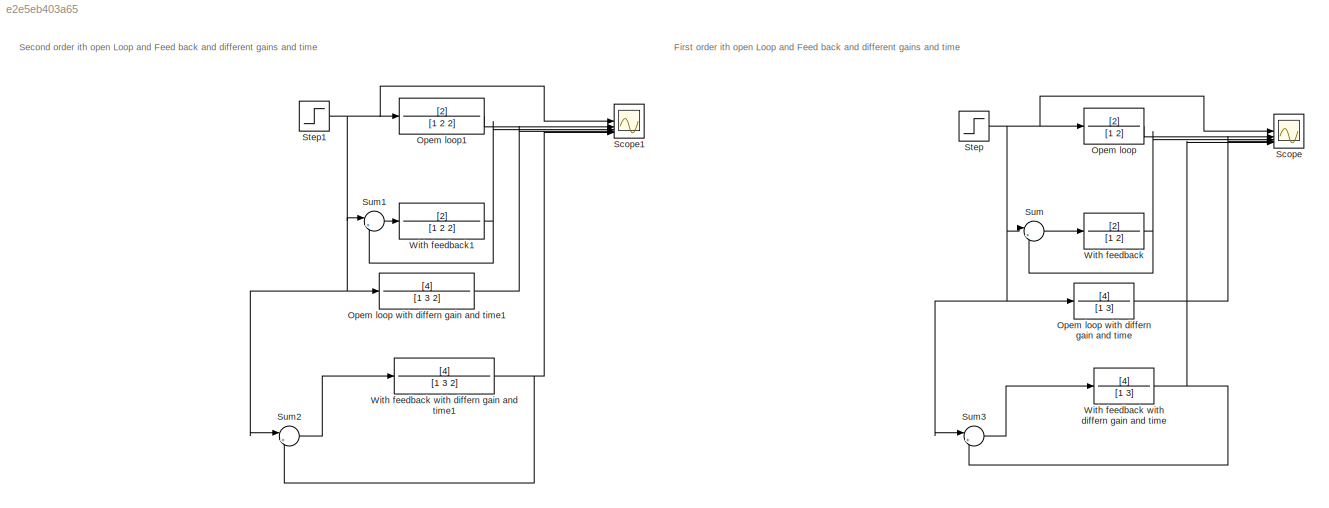
MODEL slx_e2e5eb403a65
KIND model
CONFIG AbsTol = auto
CONFIG EnableMultiTasking = off
CONFIG FixedStep = auto
CONFIG MaxStep = auto
CONFIG MinStep = auto
CONFIG RelTol = 1e-3
CONFIG SampleTimeConstraint = Unconstrained
CONFIG SolverName = VariableStepAuto
CONFIG StartTime = 0.0
CONFIG StopTime = 10.0
BLOCK [TransferFcn] Opem loop
  Denominator = [1 2]
  Numerator = [2]
BLOCK [TransferFcn] Opem loop with differn gain and time
  Denominator = [1 3]
  Numerator = [4]
BLOCK [TransferFcn] Opem loop with differn gain and time1
  Denominator = [1 3 2]
  Numerator = [4]
BLOCK [TransferFcn] Opem loop1
  Denominator = [1 2 2]
  Numerator = [2]
BLOCK [Scope] Scope
  Floating = off
  NumInputPorts = 5
  ScopeSpecificationString = Simulink.scopes.TimeScopeBlockCfg('CurrentConfiguration', extmgr.ConfigurationSet(extmgr.Configuration('Core','General UI',true),extmgr.Configuration('Core','Source UI',true),extmgr.Configuration('Sources','WiredSimulink',true),extmgr.Configuration('Visuals','Time Domain',true,'SerializedDisplays',{struct('MinYLimReal','-0.16667','MaxYLimReal','1.5','YLabelReal','','MinYLimMag','0.00000','MaxYLimM...<+4914ch>
BLOCK [Scope] Scope1
  Floating = off
  NumInputPorts = 5
  ScopeSpecificationString = Simulink.scopes.TimeScopeBlockCfg('CurrentConfiguration', extmgr.ConfigurationSet(extmgr.Configuration('Core','General UI',true),extmgr.Configuration('Core','Source UI',true),extmgr.Configuration('Sources','WiredSimulink',true,'DataLoggingVariableName','ScopeData1'),extmgr.Configuration('Visuals','Time Domain',true,'SerializedDisplays',{struct('MinYLimReal','-0.125','MaxYLimReal','1.125','YLabelRe...<+4926ch>
BLOCK [Step] Step
  SampleTime = 0
BLOCK [Step] Step1
  SampleTime = 0
BLOCK [Sum] Sum
  Inputs = |+-
BLOCK [Sum] Sum1
  Inputs = |+-
BLOCK [Sum] Sum2
  Inputs = |+-
BLOCK [Sum] Sum3
  Inputs = |+-
BLOCK [TransferFcn] With feedback
  Denominator = [1 2]
  Numerator = [2]
BLOCK [TransferFcn] With feedback with differn gain and time
  Denominator = [1 3]
  Numerator = [4]
BLOCK [TransferFcn] With feedback with differn gain and time1
  Denominator = [1 3 2]
  Numerator = [4]
BLOCK [TransferFcn] With feedback1
  Denominator = [1 2 2]
  Numerator = [2]
ANNOTATION (root): First order ith open Loop and Feed back and different gains and time
ANNOTATION (root): Second order ith open Loop and Feed back and different gains and time
LINE Opem loop with differn gain and time1:1 -> Scope1:4
LINE Opem loop with differn gain and time:1 -> Scope:4
LINE Opem loop1:1 -> Scope1:2
LINE Opem loop:1 -> Scope:2
NET Step1:1 -> Opem loop with differn gain and time1:1, Opem loop1:1, Scope1:1, Sum1:1, Sum2:1
NET Step:1 -> Opem loop with differn gain and time:1, Opem loop:1, Scope:1, Sum3:1, Sum:1
LINE Sum1:1 -> With feedback1:1
LINE Sum2:1 -> With feedback with differn gain and time1:1
LINE Sum3:1 -> With feedback with differn gain and time:1
LINE Sum:1 -> With feedback:1
NET With feedback with differn gain and time1:1 -> Scope1:5, Sum2:2
NET With feedback with differn gain and time:1 -> Scope:5, Sum3:2
NET With feedback1:1 -> Scope1:3, Sum1:2
NET With feedback:1 -> Scope:3, Sum:2
note: NET lines group one-source signal fan-out (src -> all destinations, sorted); 1:1 wires keep LINE
